MODEL slx_dff5389cf19c
KIND model
CONFIG AbsTol = auto
CONFIG EnableMultiTasking = off
CONFIG FixedStep = auto
CONFIG MaxStep = auto
CONFIG MinStep = auto
CONFIG RelTol = 1e-3
CONFIG SampleTimeConstraint = Unconstrained
CONFIG Solver = VariableStepAuto
CONFIG SolverName = VariableStepAuto
CONFIG StartTime = 0.0
CONFIG StopTime = 4
BLOCK [Reference]  System Generator  REF=xbsIndex_r4/ System Generator
  AttributesFormatString = System\nGenerator
  Ports = []
  SourceBlock = xbsIndex_r4/ System Generator
  SourceType = Xilinx System Generator Block
  Tag = genX
  UserDataPersistent = on
BLOCK [Step] D
  After = 0
  SampleTime = 0.01
  Time = 2
BLOCK [Reference] Gateway In  REF=xbsIndex_r4/Gateway In
  Ports = [1, 1]
  SourceBlock = xbsIndex_r4/Gateway In
  SourceType = Xilinx Gateway In Block
BLOCK [Reference] Gateway Out  REF=xbsIndex_r4/Gateway Out
  Ports = [1, 1]
  SourceBlock = xbsIndex_r4/Gateway Out
  SourceType = Xilinx Gateway Out Block
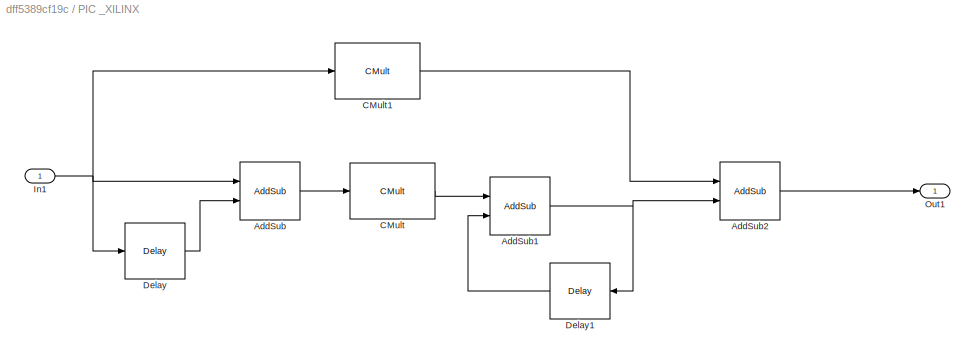
BLOCK [SubSystem] PIC _XILINX
  Ports = [1, 1]
  RequestExecContextInheritance = off
  Variant = off
BLOCK [Reference] PIC _XILINX/AddSub  REF=xbsIndex_r4/AddSub
  Ports = [2, 1]
  SourceBlock = xbsIndex_r4/AddSub
  SourceType = Xilinx Adder/Subtracter Block
BLOCK [Reference] PIC _XILINX/AddSub1  REF=xbsIndex_r4/AddSub
  Ports = [2, 1]
  SourceBlock = xbsIndex_r4/AddSub
  SourceType = Xilinx Adder/Subtracter Block
BLOCK [Reference] PIC _XILINX/AddSub2  REF=xbsIndex_r4/AddSub
  Ports = [2, 1]
  SourceBlock = xbsIndex_r4/AddSub
  SourceType = Xilinx Adder/Subtracter Block
BLOCK [Reference] PIC _XILINX/CMult  REF=xbsIndex_r4/CMult
  Ports = [1, 1]
  SourceBlock = xbsIndex_r4/CMult
  SourceType = Xilinx Constant Multiplier Block
BLOCK [Reference] PIC _XILINX/CMult1  REF=xbsIndex_r4/CMult
  Ports = [1, 1]
  SourceBlock = xbsIndex_r4/CMult
  SourceType = Xilinx Constant Multiplier Block
BLOCK [Reference] PIC _XILINX/Delay  REF=xbsIndex_r4/Delay
  Ports = [1, 1]
  SourceBlock = xbsIndex_r4/Delay
  SourceType = Xilinx Delay Block
BLOCK [Reference] PIC _XILINX/Delay1  REF=xbsIndex_r4/Delay
  Ports = [1, 1]
  SourceBlock = xbsIndex_r4/Delay
  SourceType = Xilinx Delay Block
BLOCK [Inport] PIC _XILINX/In1
  IconDisplay = Port number
BLOCK [Outport] PIC _XILINX/Out1
  IconDisplay = Port number
BLOCK [Step] Ref
  SampleTime = 0.01
  Time = 0
BLOCK [Scope] Scope
  NumInputPorts = 1
  Ports = [1]
  ScopeSpecificationString = Simulink.scopes.TimeScopeBlockCfg('CurrentConfiguration', extmgr.ConfigurationSet(extmgr.Configuration('Core','General UI',true),extmgr.Configuration('Core','Source UI',true),extmgr.Configuration('Sources','WiredSimulink',true,'DataLoggingVariableName','ScopeData1','DataLoggingSaveFormat','Array'),extmgr.Configuration('Visuals','Time Domain',true,'SerializedDisplays',{struct('MinYLimReal','-0.1384...<+1467ch>
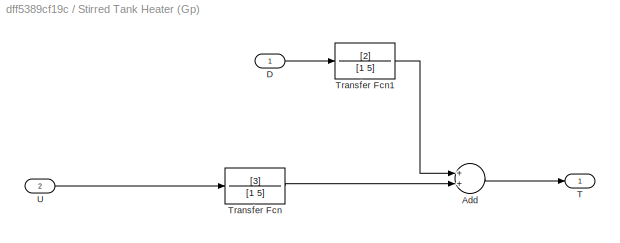
BLOCK [SubSystem] Stirred Tank Heater (Gp)
  Ports = [2, 1]
  RequestExecContextInheritance = off
  Variant = off
BLOCK [Sum] Stirred Tank Heater (Gp)/Add
  InputSameDT = off
  OutDataTypeStr = Inherit: Inherit via internal rule
  Ports = [2, 1]
  SaturateOnIntegerOverflow = off
BLOCK [Inport] Stirred Tank Heater (Gp)/D
  IconDisplay = Port number
BLOCK [Outport] Stirred Tank Heater (Gp)/T
  IconDisplay = Port number
BLOCK [TransferFcn] Stirred Tank Heater (Gp)/Transfer Fcn
  Denominator = [1 5]
  Numerator = [3]
BLOCK [TransferFcn] Stirred Tank Heater (Gp)/Transfer Fcn1
  Denominator = [1 5]
  Numerator = [2]
BLOCK [Inport] Stirred Tank Heater (Gp)/U
  IconDisplay = Port number
  Port = 2
BLOCK [Sum] Sum
  IconShape = round
  InputSameDT = off
  Inputs = |+-
  OutDataTypeStr = Inherit: Inherit via internal rule
  Ports = [2, 1]
  SaturateOnIntegerOverflow = off
ANNOTATION (root): If you are unable to run this you can contact me via E-mail: <email>
LINE D:1 -> Stirred Tank Heater (Gp):1
LINE Gateway In:1 -> PIC _XILINX:1
LINE Gateway Out:1 -> Stirred Tank Heater (Gp):2
NET PIC _XILINX/AddSub1:1 -> PIC _XILINX/AddSub2:2, PIC _XILINX/Delay1:1
LINE PIC _XILINX/AddSub2:1 -> PIC _XILINX/Out1:1
LINE PIC _XILINX/AddSub:1 -> PIC _XILINX/CMult:1
LINE PIC _XILINX/CMult1:1 -> PIC _XILINX/AddSub2:1
LINE PIC _XILINX/CMult:1 -> PIC _XILINX/AddSub1:1
LINE PIC _XILINX/Delay1:1 -> PIC _XILINX/AddSub1:2
LINE PIC _XILINX/Delay:1 -> PIC _XILINX/AddSub:2
NET PIC _XILINX/In1:1 -> PIC _XILINX/AddSub:1, PIC _XILINX/CMult1:1, PIC _XILINX/Delay:1
LINE PIC _XILINX:1 -> Gateway Out:1
LINE Ref:1 -> Sum:1
LINE Stirred Tank Heater (Gp)/Add:1 -> Stirred Tank Heater (Gp)/T:1
LINE Stirred Tank Heater (Gp)/D:1 -> Stirred Tank Heater (Gp)/Transfer Fcn1:1
LINE Stirred Tank Heater (Gp)/Transfer Fcn1:1 -> Stirred Tank Heater (Gp)/Add:1
LINE Stirred Tank Heater (Gp)/Transfer Fcn:1 -> Stirred Tank Heater (Gp)/Add:2
LINE Stirred Tank Heater (Gp)/U:1 -> Stirred Tank Heater (Gp)/Transfer Fcn:1
NET Stirred Tank Heater (Gp):1 -> Scope:1, Sum:2
LINE Sum:1 -> Gateway In:1
note: NET lines group one-source signal fan-out (src -> all destinations, sorted); 1:1 wires keep LINE
